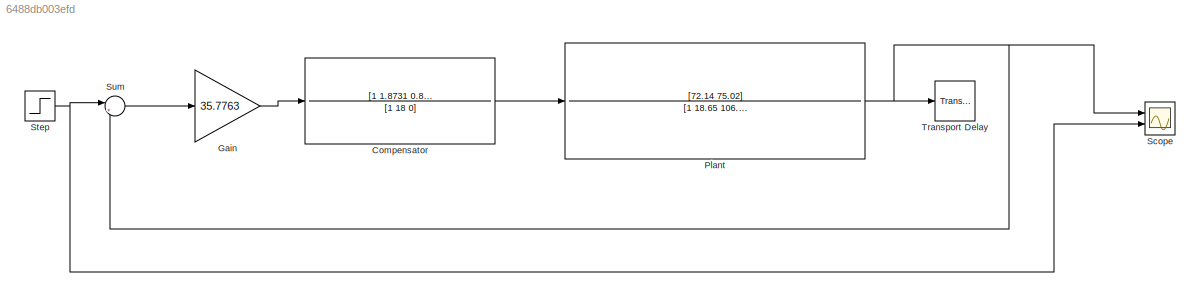
MODEL slx_6488db003efd
KIND model
CONFIG AbsTol = auto
CONFIG EnableMultiTasking = off
CONFIG FixedStep = auto
CONFIG MaxStep = auto
CONFIG MinStep = auto
CONFIG RelTol = 1e-3
CONFIG SampleTimeConstraint = Unconstrained
CONFIG SolverName = VariableStepAuto
CONFIG StartTime = 0.0
CONFIG StopTime = 10
BLOCK [TransferFcn] Compensator
  ContinuousStateAttributes = 'Compensator'
  Denominator = [1 18 0]
  Numerator = [1 1.8731 0.8580]
BLOCK [Gain] Gain
  Gain = 35.7763
BLOCK [TransferFcn] Plant
  ContinuousStateAttributes = "Plant"
  Denominator = [1 18.65 106.9 214.6 177.4 51.93]
  Numerator = [72.14 75.02]
BLOCK [Scope] Scope
  Floating = off
  NumInputPorts = 2
  Ports = [2]
  ScopeSpecificationString = Simulink.scopes.TimeScopeBlockCfg('CurrentConfiguration', extmgr.ConfigurationSet(extmgr.Configuration('Core','General UI',true),extmgr.Configuration('Core','Source UI',true),extmgr.Configuration('Sources','WiredSimulink',true),extmgr.Configuration('Visuals','Time Domain',true,'SerializedDisplays',{struct('MinYLimReal','-0.14877','MaxYLimReal','1.33896','YLabelReal','','MinYLimMag','0.00000','MaxY...<+1360ch>
BLOCK [Step] Step
  SampleTime = 0
BLOCK [Sum] Sum
  Inputs = |+-
  Ports = [2, 1]
BLOCK [TransportDelay] Transport Delay
  Commented = on
  DelayTime = 0.1
  Ports = [1, 1]
LINE Compensator:1 -> Plant:1
LINE Gain:1 -> Compensator:1
NET Plant:1 -> Scope:1, Sum:2, Transport Delay:1
NET Step:1 -> Scope:2, Sum:1
LINE Sum:1 -> Gain:1
note: NET lines group one-source signal fan-out (src -> all destinations, sorted); 1:1 wires keep LINE
